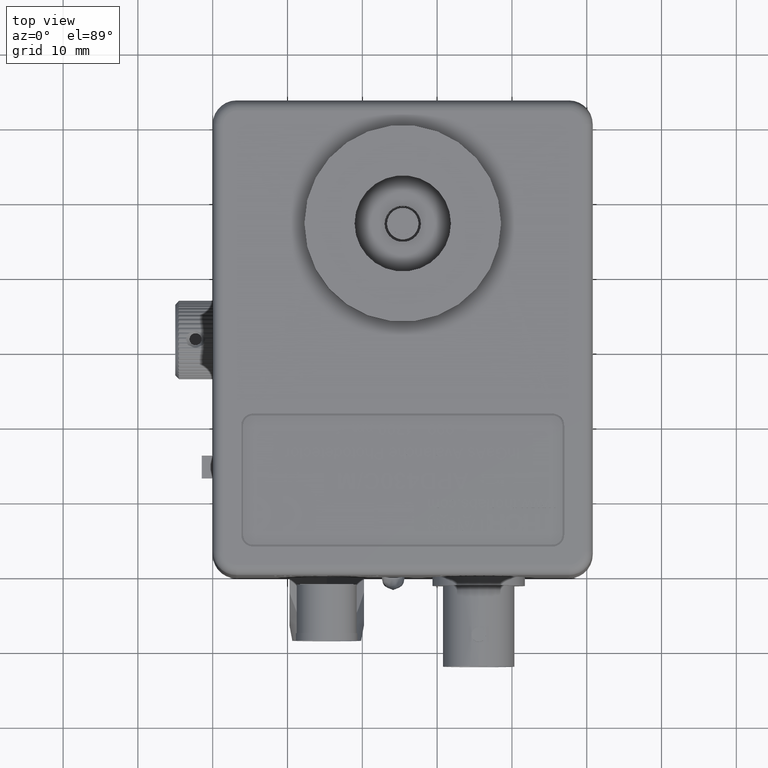
[diagram: clean part render]
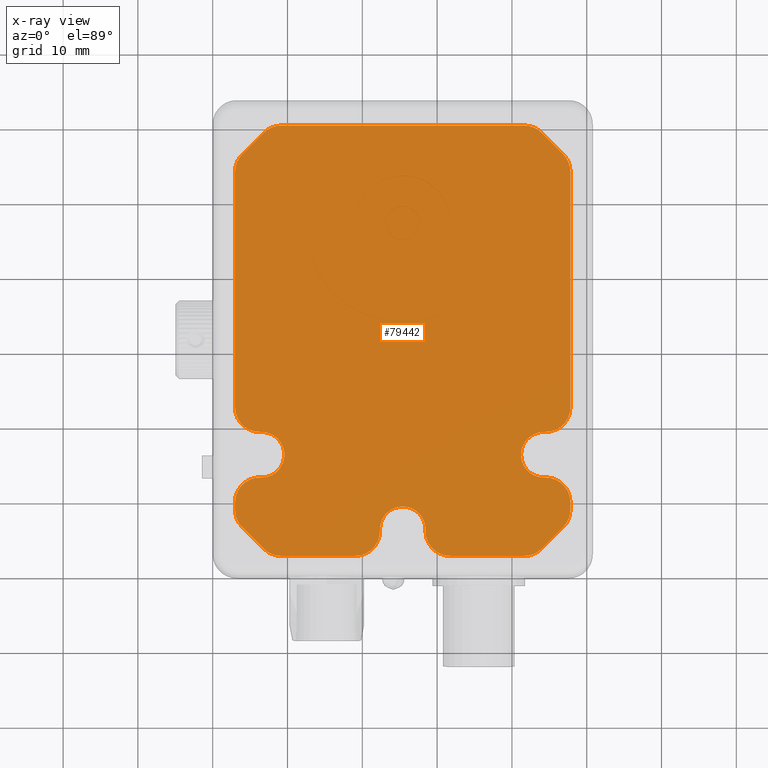
[diagram: x-ray — body ghosted, one internal face saturated and labeled with its STEP entity id]
A machine part, top view, then the same camera in x-ray: the body is ghosted and one INTERNAL B-rep face — a face not visible from any outside direction — is saturated and labeled: STEP entity #79442.
In plain terms, the highlighted planar face has unit normal (0, 0, 1).
Its self-contained STEP definition (entity closure, byte-faithful):
#1457 = VERTEX_POINT ( 'NONE', #101985 ) ;
#2104 = CIRCLE ( 'NONE', #29386, 3.301999999999999600 ) ;
#2356 = ORIENTED_EDGE ( 'NONE', *, *, #75447, .T. ) ;
#3214 = ORIENTED_EDGE ( 'NONE', *, *, #129466, .T. ) ;
#4104 = ORIENTED_EDGE ( 'NONE', *, *, #100851, .T. ) ;
#4576 = LINE ( 'NONE', #95674, #31450 ) ;
#4833 = VERTEX_POINT ( 'NONE', #110928 ) ;
#5561 = CARTESIAN_POINT ( 'NONE',  ( 59.56299999999999500, 0.0000000000000000000, -40.69479510314467100 ) ) ;
#5574 = AXIS2_PLACEMENT_3D ( 'NONE', #18356, #88547, #28462 ) ;
#5588 = DIRECTION ( 'NONE',  ( 0.0000000000000000000, -1.000000000000000000, 0.0000000000000000000 ) ) ;
#5718 = CARTESIAN_POINT ( 'NONE',  ( 0.0000000000000000000, 0.0000000000000000000, -48.89500000000000300 ) ) ;
#7037 = EDGE_CURVE ( 'NONE', #111616, #85062, #98745, .T. ) ;
#8275 = LINE ( 'NONE', #45297, #32011 ) ;
#8498 = CARTESIAN_POINT ( 'NONE',  ( 55.72966169462260700, 0.0000000000000000000, -45.89586659147799000 ) ) ;
#8965 = EDGE_CURVE ( 'NONE', #64667, #63595, #115257, .T. ) ;
#8990 = EDGE_CURVE ( 'NONE', #126611, #42978, #129379, .T. ) ;
#9004 = CARTESIAN_POINT ( 'NONE',  ( 5.333999999999999600, 0.0000000000000000000, -40.69479510314467100 ) ) ;
#9340 = ORIENTED_EDGE ( 'NONE', *, *, #115637, .T. ) ;
#10239 = ORIENTED_EDGE ( 'NONE', *, *, #99113, .T. ) ;
#10387 = VERTEX_POINT ( 'NONE', #8498 ) ;
#10498 = CIRCLE ( 'NONE', #27655, 3.047999999999997800 ) ;
#10687 = VERTEX_POINT ( 'NONE', #46121 ) ;
#11470 = DIRECTION ( 'NONE',  ( 0.0000000000000000000, -1.000000000000000000, 0.0000000000000000000 ) ) ;
#12614 = ORIENTED_EDGE ( 'NONE', *, *, #16394, .T. ) ;
#12824 = DIRECTION ( 'NONE',  ( -0.0000000000000000000, 1.000000000000000000, -0.0000000000000000000 ) ) ;
#13448 = ORIENTED_EDGE ( 'NONE', *, *, #8965, .T. ) ;
#14200 = ORIENTED_EDGE ( 'NONE', *, *, #101457, .T. ) ;
#14536 = CIRCLE ( 'NONE', #34430, 3.301999999999999600 ) ;
#15619 = VERTEX_POINT ( 'NONE', #44373 ) ;
#15940 = DIRECTION ( 'NONE',  ( 0.0000000000000000000, -0.0000000000000000000, -1.000000000000000000 ) ) ;
#16394 = EDGE_CURVE ( 'NONE', #40527, #111616, #36118, .T. ) ;
#16503 = ORIENTED_EDGE ( 'NONE', *, *, #33548, .T. ) ;
#17598 = DIRECTION ( 'NONE',  ( 0.0000000000000000000, 0.0000000000000000000, 1.000000000000000000 ) ) ;
#18012 = CARTESIAN_POINT ( 'NONE',  ( 52.38241796637277000, 0.0000000000000000000, -43.56099999999999300 ) ) ;
#18089 = DIRECTION ( 'NONE',  ( -0.7071067811865489100, -0.0000000000000000000, 0.7071067811865462400 ) ) ;
#18356 = CARTESIAN_POINT ( 'NONE',  ( 52.38241796637274900, 0.0000000000000000000, -5.333999999999999600 ) ) ;
#18389 = DIRECTION ( 'NONE',  ( 0.0000000000000000000, -1.000000000000000000, 0.0000000000000000000 ) ) ;
#18587 = DIRECTION ( 'NONE',  ( 0.0000000000000000000, 0.0000000000000000000, 1.000000000000000000 ) ) ;
#19223 = DIRECTION ( 'NONE',  ( 0.0000000000000000000, 0.0000000000000000000, -1.000000000000000000 ) ) ;
#19301 = CARTESIAN_POINT ( 'NONE',  ( 2.999133408522020300, 0.0000000000000000000, -43.02966169462266100 ) ) ;
#19681 = CARTESIAN_POINT ( 'NONE',  ( 56.26099999999999600, 0.0000000000000000000, -18.10258203362724000 ) ) ;
#19710 = DIRECTION ( 'NONE',  ( 0.0000000000000000000, -1.000000000000000000, 0.0000000000000000000 ) ) ;
#20547 = CIRCLE ( 'NONE', #64222, 3.301999999999999600 ) ;
#21100 = CARTESIAN_POINT ( 'NONE',  ( 8.200204896855332500, 0.0000000000000000000, -46.86300000000000700 ) ) ;
#21285 = ORIENTED_EDGE ( 'NONE', *, *, #100664, .T. ) ;
#21478 = DIRECTION ( 'NONE',  ( 0.0000000000000000000, -1.000000000000000000, 0.0000000000000000000 ) ) ;
#21561 = LINE ( 'NONE', #57670, #125259 ) ;
#22064 = DIRECTION ( 'NONE',  ( 0.0000000000000000000, -1.000000000000000000, 0.0000000000000000000 ) ) ;
#22220 = AXIS2_PLACEMENT_3D ( 'NONE', #90554, #30410, #100690 ) ;
#23134 = VERTEX_POINT ( 'NONE', #24493 ) ;
#23326 = ORIENTED_EDGE ( 'NONE', *, *, #100878, .T. ) ;
#23865 = VERTEX_POINT ( 'NONE', #69966 ) ;
#24227 = ORIENTED_EDGE ( 'NONE', *, *, #117547, .T. ) ;
#24493 = CARTESIAN_POINT ( 'NONE',  ( 59.56299999999999500, 0.0000000000000000000, -18.10258203362724000 ) ) ;
#24699 = VERTEX_POINT ( 'NONE', #124554 ) ;
#25391 = DIRECTION ( 'NONE',  ( 0.7071067811865510100, 0.0000000000000000000, 0.7071067811865441300 ) ) ;
#25785 = CARTESIAN_POINT ( 'NONE',  ( 56.12892000000000100, 0.0000000000000000000, -21.40193937614108000 ) ) ;
#25904 = AXIS2_PLACEMENT_3D ( 'NONE', #73038, #12824, #83157 ) ;
#26157 = ORIENTED_EDGE ( 'NONE', *, *, #26811, .T. ) ;
#26811 = EDGE_CURVE ( 'NONE', #24699, #90949, #56234, .T. ) ;
#26979 = LINE ( 'NONE', #81173, #80436 ) ;
#27564 = AXIS2_PLACEMENT_3D ( 'NONE', #39918, #39630, #120397 ) ;
#27636 = AXIS2_PLACEMENT_3D ( 'NONE', #92666, #32505, #102754 ) ;
#27655 = AXIS2_PLACEMENT_3D ( 'NONE', #87978, #27882, #98134 ) ;
#27882 = DIRECTION ( 'NONE',  ( -0.0000000000000000000, 1.000000000000000000, -0.0000000000000000000 ) ) ;
#28107 = DIRECTION ( 'NONE',  ( 0.0000000000000000000, 0.0000000000000000000, -1.000000000000000000 ) ) ;
#28462 = DIRECTION ( 'NONE',  ( 0.0000000000000000000, 0.0000000000000000000, -1.000000000000000000 ) ) ;
#29386 = AXIS2_PLACEMENT_3D ( 'NONE', #79895, #19710, #89946 ) ;
#29777 = DIRECTION ( 'NONE',  ( 0.0000000000000000000, 0.0000000000000000000, 1.000000000000000000 ) ) ;
#29825 = CARTESIAN_POINT ( 'NONE',  ( 56.00699999999999100, 0.0000000000000000000, -24.44750000000001200 ) ) ;
#30410 = DIRECTION ( 'NONE',  ( -0.0000000000000000000, 1.000000000000000000, -0.0000000000000000000 ) ) ;
#31081 = DIRECTION ( 'NONE',  ( -1.000000000000000000, 0.0000000000000000000, 1.377097915189823600E-017 ) ) ;
#31450 = VECTOR ( 'NONE', #25391, 1000.000000000000000 ) ;
#31655 = VERTEX_POINT ( 'NONE', #99582 ) ;
#32011 = VECTOR ( 'NONE', #95333, 1000.000000000000000 ) ;
#32505 = DIRECTION ( 'NONE',  ( 0.0000000000000000000, -1.000000000000000000, 0.0000000000000000000 ) ) ;
#32556 = DIRECTION ( 'NONE',  ( -0.0000000000000000000, 1.000000000000000000, -0.0000000000000000000 ) ) ;
#33548 = EDGE_CURVE ( 'NONE', #50970, #23865, #126279, .T. ) ;
#33870 = DIRECTION ( 'NONE',  ( 0.0000000000000000000, 0.0000000000000000000, 1.000000000000000000 ) ) ;
#34221 = ORIENTED_EDGE ( 'NONE', *, *, #57052, .T. ) ;
#34430 = AXIS2_PLACEMENT_3D ( 'NONE', #18012, #88196, #28107 ) ;
#34440 = DIRECTION ( 'NONE',  ( 0.0000000000000000000, -1.000000000000000000, 0.0000000000000000000 ) ) ;
#34498 = ORIENTED_EDGE ( 'NONE', *, *, #96605, .T. ) ;
#34700 = CARTESIAN_POINT ( 'NONE',  ( 56.26099999999999600, 0.0000000000000000000, -18.10258203362724000 ) ) ;
#34946 = DIRECTION ( 'NONE',  ( 1.000000000000000000, 0.0000000000000000000, -1.370812052518887000E-014 ) ) ;
#35064 = EDGE_CURVE ( 'NONE', #10387, #38837, #4576, .T. ) ;
#35844 = EDGE_CURVE ( 'NONE', #100824, #15619, #57839, .T. ) ;
#35977 = FACE_OUTER_BOUND ( 'NONE', #70549, .T. ) ;
#36118 = CIRCLE ( 'NONE', #98695, 3.302000000000006300 ) ;
#36955 = ORIENTED_EDGE ( 'NONE', *, *, #35844, .T. ) ;
#37298 = VERTEX_POINT ( 'NONE', #85585 ) ;
#38837 = VERTEX_POINT ( 'NONE', #126544 ) ;
#38910 = CIRCLE ( 'NONE', #58692, 3.302000000000000000 ) ;
#38978 = AXIS2_PLACEMENT_3D ( 'NONE', #71683, #11470, #81824 ) ;
#39328 = VERTEX_POINT ( 'NONE', #75044 ) ;
#39630 = DIRECTION ( 'NONE',  ( 0.0000000000000000000, -1.000000000000000000, 0.0000000000000000000 ) ) ;
#39918 = CARTESIAN_POINT ( 'NONE',  ( 53.39479510314463800, 0.0000000000000000000, -5.333999999999999600 ) ) ;
#39942 = DIRECTION ( 'NONE',  ( 0.0000000000000000000, 0.0000000000000000000, -1.000000000000000000 ) ) ;
#40261 = EDGE_CURVE ( 'NONE', #39328, #57405, #10498, .T. ) ;
#40319 = DIRECTION ( 'NONE',  ( -0.0000000000000000000, 1.000000000000000000, -0.0000000000000000000 ) ) ;
#40527 = VERTEX_POINT ( 'NONE', #42743 ) ;
#41632 = EDGE_CURVE ( 'NONE', #52941, #31655, #52799, .T. ) ;
#42243 = VERTEX_POINT ( 'NONE', #5561 ) ;
#42336 = DIRECTION ( 'NONE',  ( 0.0000000000000000000, -1.000000000000000000, 0.0000000000000000000 ) ) ;
#42743 = CARTESIAN_POINT ( 'NONE',  ( 2.031999999999999600, 0.0000000000000000000, -40.69479510314467100 ) ) ;
#42978 = VERTEX_POINT ( 'NONE', #87597 ) ;
#43554 = EDGE_CURVE ( 'NONE', #68312, #24699, #20547, .T. ) ;
#44373 = CARTESIAN_POINT ( 'NONE',  ( 42.99193937614106900, 0.0000000000000000000, -43.42892000000000500 ) ) ;
#45297 = CARTESIAN_POINT ( 'NONE',  ( 52.38241796637274900, 0.0000000000000000000, -2.032000000000000000 ) ) ;
#46121 = CARTESIAN_POINT ( 'NONE',  ( 8.200204896855376900, 0.0000000000000000000, -2.032000000000000000 ) ) ;
#46806 = EDGE_CURVE ( 'NONE', #69886, #51062, #14536, .T. ) ;
#47237 = ORIENTED_EDGE ( 'NONE', *, *, #35064, .T. ) ;
#48303 = CARTESIAN_POINT ( 'NONE',  ( 39.69258203362722500, 0.0000000000000000000, -43.56099999999999300 ) ) ;
#48684 = CIRCLE ( 'NONE', #50164, 3.301999999999999600 ) ;
#48961 = CIRCLE ( 'NONE', #27636, 3.301999999999999600 ) ;
#49616 = VECTOR ( 'NONE', #91034, 1000.000000000000100 ) ;
#50164 = AXIS2_PLACEMENT_3D ( 'NONE', #19681, #89912, #29777 ) ;
#50824 = LINE ( 'NONE', #127789, #101070 ) ;
#50970 = VERTEX_POINT ( 'NONE', #120101 ) ;
#51062 = VERTEX_POINT ( 'NONE', #92861 ) ;
#51590 = CIRCLE ( 'NONE', #130239, 3.301999999999999600 ) ;
#51951 = VERTEX_POINT ( 'NONE', #86886 ) ;
#52032 = CIRCLE ( 'NONE', #68674, 3.048000000000002300 ) ;
#52058 = EDGE_CURVE ( 'NONE', #1457, #102082, #38910, .T. ) ;
#52060 = CARTESIAN_POINT ( 'NONE',  ( 49.08306062385892700, 0.0000000000000000000, -43.42892000000000500 ) ) ;
#52633 = AXIS2_PLACEMENT_3D ( 'NONE', #82269, #22064, #92369 ) ;
#52799 = LINE ( 'NONE', #80996, #49616 ) ;
#52941 = VERTEX_POINT ( 'NONE', #86381 ) ;
#53382 = ORIENTED_EDGE ( 'NONE', *, *, #72952, .T. ) ;
#53663 = VECTOR ( 'NONE', #81301, 1000.000000000000000 ) ;
#54119 = CIRCLE ( 'NONE', #38978, 3.301999999999998700 ) ;
#56234 = CIRCLE ( 'NONE', #114276, 3.048000000000002300 ) ;
#56409 = VECTOR ( 'NONE', #18587, 1000.000000000000000 ) ;
#57052 = EDGE_CURVE ( 'NONE', #80639, #126611, #52032, .T. ) ;
#57277 = DIRECTION ( 'NONE',  ( 0.0000000000000000000, 0.0000000000000000000, -1.000000000000000000 ) ) ;
#57405 = VERTEX_POINT ( 'NONE', #59022 ) ;
#57670 = CARTESIAN_POINT ( 'NONE',  ( 55.72966169462261400, 0.0000000000000000000, -2.999133408522012700 ) ) ;
#57839 = CIRCLE ( 'NONE', #64995, 3.301999999999999600 ) ;
#58117 = CARTESIAN_POINT ( 'NONE',  ( 56.00699999999999100, 0.0000000000000000000, -21.39950000000001000 ) ) ;
#58446 = DIRECTION ( 'NONE',  ( 0.0000000000000000000, 0.0000000000000000000, -1.000000000000000000 ) ) ;
#58692 = AXIS2_PLACEMENT_3D ( 'NONE', #78567, #18389, #88579 ) ;
#59022 = CARTESIAN_POINT ( 'NONE',  ( 42.99193937614106900, 0.0000000000000000000, -5.466079999999998900 ) ) ;
#61257 = AXIS2_PLACEMENT_3D ( 'NONE', #34700, #34440, #33870 ) ;
#63409 = CARTESIAN_POINT ( 'NONE',  ( 2.032000000000000500, 0.0000000000000000000, -8.200204896855348500 ) ) ;
#63595 = VERTEX_POINT ( 'NONE', #77380 ) ;
#63980 = ORIENTED_EDGE ( 'NONE', *, *, #43554, .T. ) ;
#64222 = AXIS2_PLACEMENT_3D ( 'NONE', #81681, #21478, #91745 ) ;
#64667 = VERTEX_POINT ( 'NONE', #87087 ) ;
#64995 = AXIS2_PLACEMENT_3D ( 'NONE', #48303, #118519, #58446 ) ;
#65872 = CARTESIAN_POINT ( 'NONE',  ( 53.39479510314463800, 0.0000000000000000000, -43.56100000000000000 ) ) ;
#67948 = CIRCLE ( 'NONE', #25904, 3.048000000000002300 ) ;
#68312 = VERTEX_POINT ( 'NONE', #107686 ) ;
#68674 = AXIS2_PLACEMENT_3D ( 'NONE', #92707, #32556, #102801 ) ;
#69886 = VERTEX_POINT ( 'NONE', #52060 ) ;
#69966 = CARTESIAN_POINT ( 'NONE',  ( 49.08306062385891300, 0.0000000000000000000, -5.466079999999998900 ) ) ;
#70549 = EDGE_LOOP ( 'NONE', ( #89169, #3214, #97030, #9340, #74918, #12614, #86277, #14200, #110858, #36955, #71312, #128961, #21285, #129904, #47237, #2356, #53382, #63980, #26157, #23326, #34221, #121693, #24227, #112055, #92722, #10239, #13448, #34498, #16503, #120695, #101545, #4104 ) ) ;
#71312 = ORIENTED_EDGE ( 'NONE', *, *, #116594, .T. ) ;
#71683 = CARTESIAN_POINT ( 'NONE',  ( 8.200204896855376900, 0.0000000000000000000, -5.333999999999999600 ) ) ;
#71971 = EDGE_CURVE ( 'NONE', #51951, #100824, #80304, .T. ) ;
#72012 = VECTOR ( 'NONE', #93902, 1000.000000000000100 ) ;
#72952 = EDGE_CURVE ( 'NONE', #42243, #68312, #83080, .T. ) ;
#73038 = CARTESIAN_POINT ( 'NONE',  ( 56.00699999999999100, 0.0000000000000000000, -24.44750000000001200 ) ) ;
#74697 = EDGE_CURVE ( 'NONE', #23134, #1457, #50824, .T. ) ;
#74918 = ORIENTED_EDGE ( 'NONE', *, *, #79528, .T. ) ;
#75044 = CARTESIAN_POINT ( 'NONE',  ( 46.03749999999999400, 0.0000000000000000000, -8.635999999999997500 ) ) ;
#75447 = EDGE_CURVE ( 'NONE', #38837, #42243, #113270, .T. ) ;
#75979 = DIRECTION ( 'NONE',  ( 0.0000000000000000000, 0.0000000000000000000, -1.000000000000000000 ) ) ;
#76108 = DIRECTION ( 'NONE',  ( 0.0000000000000000000, -1.000000000000000000, 0.0000000000000000000 ) ) ;
#76376 = CARTESIAN_POINT ( 'NONE',  ( 58.59586659147797100, 0.0000000000000000000, -5.865338305377361100 ) ) ;
#76840 = VERTEX_POINT ( 'NONE', #63409 ) ;
#77380 = CARTESIAN_POINT ( 'NONE',  ( 53.39479510314463800, 0.0000000000000000000, -2.032000000000000000 ) ) ;
#78567 = CARTESIAN_POINT ( 'NONE',  ( 56.26099999999999600, 0.0000000000000000000, -8.200204896855346700 ) ) ;
#79407 = DIRECTION ( 'NONE',  ( 0.0000000000000000000, -1.000000000000000000, 0.0000000000000000000 ) ) ;
#79442 = ADVANCED_FACE ( 'NONE', ( #35977 ), #95884, .T. ) ;
#79528 = EDGE_CURVE ( 'NONE', #76840, #40527, #100373, .T. ) ;
#79895 = CARTESIAN_POINT ( 'NONE',  ( 5.334000000000000500, 0.0000000000000000000, -8.200204896855346700 ) ) ;
#80304 = LINE ( 'NONE', #21100, #53663 ) ;
#80436 = VECTOR ( 'NONE', #31081, 1000.000000000000000 ) ;
#80639 = VERTEX_POINT ( 'NONE', #58117 ) ;
#80870 = AXIS2_PLACEMENT_3D ( 'NONE', #5718, #76108, #15940 ) ;
#80996 = CARTESIAN_POINT ( 'NONE',  ( 2.999133408522031400, 0.0000000000000000000, -5.865338305377356700 ) ) ;
#81173 = CARTESIAN_POINT ( 'NONE',  ( 39.69258203362722500, 0.0000000000000000000, -2.032000000000000500 ) ) ;
#81301 = DIRECTION ( 'NONE',  ( 1.000000000000000000, 0.0000000000000000000, 2.203356664303715100E-016 ) ) ;
#81681 = CARTESIAN_POINT ( 'NONE',  ( 56.26099999999999600, 0.0000000000000000000, -30.79241796637278100 ) ) ;
#81824 = DIRECTION ( 'NONE',  ( 0.0000000000000000000, 0.0000000000000000000, 1.000000000000000000 ) ) ;
#82269 = CARTESIAN_POINT ( 'NONE',  ( 56.26099999999999600, 0.0000000000000000000, -40.69479510314467100 ) ) ;
#83080 = LINE ( 'NONE', #128774, #56409 ) ;
#83157 = DIRECTION ( 'NONE',  ( 0.0000000000000000000, 0.0000000000000000000, -1.000000000000000000 ) ) ;
#83725 = CARTESIAN_POINT ( 'NONE',  ( 52.38241796637277000, 0.0000000000000000000, -46.86299999999999200 ) ) ;
#84718 = CARTESIAN_POINT ( 'NONE',  ( 5.865338305377360200, 0.0000000000000000000, -45.89586659147798300 ) ) ;
#85062 = VERTEX_POINT ( 'NONE', #84718 ) ;
#85585 = CARTESIAN_POINT ( 'NONE',  ( 53.39479510314463800, 0.0000000000000000000, -46.86300000000000700 ) ) ;
#86277 = ORIENTED_EDGE ( 'NONE', *, *, #7037, .T. ) ;
#86381 = CARTESIAN_POINT ( 'NONE',  ( 5.865338305377410000, 0.0000000000000000000, -2.999133408522011800 ) ) ;
#86886 = CARTESIAN_POINT ( 'NONE',  ( 8.200204896855332500, 0.0000000000000000000, -46.86300000000000000 ) ) ;
#87062 = CARTESIAN_POINT ( 'NONE',  ( 2.031999999999999600, 0.0000000000000000000, -8.200204896855350300 ) ) ;
#87087 = CARTESIAN_POINT ( 'NONE',  ( 55.72966169462261400, 0.0000000000000000000, -2.999133408522012700 ) ) ;
#87597 = CARTESIAN_POINT ( 'NONE',  ( 56.26099999999999600, 0.0000000000000000000, -21.40458203362723900 ) ) ;
#87978 = CARTESIAN_POINT ( 'NONE',  ( 46.03749999999999400, 0.0000000000000000000, -5.588000000000000100 ) ) ;
#88196 = DIRECTION ( 'NONE',  ( 0.0000000000000000000, -1.000000000000000000, 0.0000000000000000000 ) ) ;
#88547 = DIRECTION ( 'NONE',  ( 0.0000000000000000000, -1.000000000000000000, 0.0000000000000000000 ) ) ;
#88579 = DIRECTION ( 'NONE',  ( 0.0000000000000000000, 0.0000000000000000000, 1.000000000000000000 ) ) ;
#89169 = ORIENTED_EDGE ( 'NONE', *, *, #125263, .T. ) ;
#89912 = DIRECTION ( 'NONE',  ( 0.0000000000000000000, -1.000000000000000000, 0.0000000000000000000 ) ) ;
#89946 = DIRECTION ( 'NONE',  ( 0.0000000000000000000, 0.0000000000000000000, -1.000000000000000000 ) ) ;
#90239 = CIRCLE ( 'NONE', #120656, 3.047999999999997800 ) ;
#90554 = CARTESIAN_POINT ( 'NONE',  ( 46.03749999999999400, 0.0000000000000000000, -43.30699999999999500 ) ) ;
#90949 = VERTEX_POINT ( 'NONE', #119126 ) ;
#91034 = DIRECTION ( 'NONE',  ( -0.7071067811865513500, -0.0000000000000000000, -0.7071067811865435800 ) ) ;
#91415 = EDGE_CURVE ( 'NONE', #37298, #10387, #51590, .T. ) ;
#91492 = VECTOR ( 'NONE', #34946, 1000.000000000000000 ) ;
#91745 = DIRECTION ( 'NONE',  ( 0.0000000000000000000, 0.0000000000000000000, -1.000000000000000000 ) ) ;
#92369 = DIRECTION ( 'NONE',  ( 0.0000000000000000000, 0.0000000000000000000, 1.000000000000000000 ) ) ;
#92666 = CARTESIAN_POINT ( 'NONE',  ( 8.200204896855332500, 0.0000000000000000000, -43.56100000000000000 ) ) ;
#92707 = CARTESIAN_POINT ( 'NONE',  ( 56.00699999999999100, 0.0000000000000000000, -24.44750000000001200 ) ) ;
#92722 = ORIENTED_EDGE ( 'NONE', *, *, #52058, .T. ) ;
#92861 = CARTESIAN_POINT ( 'NONE',  ( 52.38241796637277000, 0.0000000000000000000, -46.86299999999999200 ) ) ;
#93902 = DIRECTION ( 'NONE',  ( 0.7071067811865499000, 0.0000000000000000000, -0.7071067811865451300 ) ) ;
#94497 = CARTESIAN_POINT ( 'NONE',  ( 2.999133408522017200, 0.0000000000000000000, -43.02966169462266100 ) ) ;
#94922 = EDGE_CURVE ( 'NONE', #23865, #39328, #90239, .T. ) ;
#95333 = DIRECTION ( 'NONE',  ( -1.000000000000000000, -0.0000000000000000000, 1.713515065648573400E-015 ) ) ;
#95674 = CARTESIAN_POINT ( 'NONE',  ( 55.72966169462260700, 0.0000000000000000000, -45.89586659147799000 ) ) ;
#95884 = PLANE ( 'NONE',  #80870 ) ;
#96605 = EDGE_CURVE ( 'NONE', #63595, #50970, #8275, .T. ) ;
#97030 = ORIENTED_EDGE ( 'NONE', *, *, #41632, .T. ) ;
#97194 = VECTOR ( 'NONE', #57277, 1000.000000000000000 ) ;
#98134 = DIRECTION ( 'NONE',  ( 0.0000000000000000000, 0.0000000000000000000, -1.000000000000000000 ) ) ;
#98695 = AXIS2_PLACEMENT_3D ( 'NONE', #9004, #79407, #19223 ) ;
#98745 = LINE ( 'NONE', #94497, #72012 ) ;
#99113 = EDGE_CURVE ( 'NONE', #102082, #64667, #21561, .T. ) ;
#99582 = CARTESIAN_POINT ( 'NONE',  ( 2.999133408522033100, 0.0000000000000000000, -5.865338305377346000 ) ) ;
#100098 = DIRECTION ( 'NONE',  ( -0.0000000000000000000, 1.000000000000000000, -0.0000000000000000000 ) ) ;
#100373 = LINE ( 'NONE', #87062, #97194 ) ;
#100482 = CARTESIAN_POINT ( 'NONE',  ( 46.03749999999999400, 0.0000000000000000000, -5.588000000000000100 ) ) ;
#100664 = EDGE_CURVE ( 'NONE', #51062, #37298, #118192, .T. ) ;
#100690 = DIRECTION ( 'NONE',  ( 0.0000000000000000000, 0.0000000000000000000, -1.000000000000000000 ) ) ;
#100824 = VERTEX_POINT ( 'NONE', #118310 ) ;
#100851 = EDGE_CURVE ( 'NONE', #57405, #4833, #104157, .T. ) ;
#100878 = EDGE_CURVE ( 'NONE', #90949, #80639, #67948, .T. ) ;
#101070 = VECTOR ( 'NONE', #17598, 1000.000000000000000 ) ;
#101457 = EDGE_CURVE ( 'NONE', #85062, #51951, #48961, .T. ) ;
#101545 = ORIENTED_EDGE ( 'NONE', *, *, #40261, .T. ) ;
#101985 = CARTESIAN_POINT ( 'NONE',  ( 59.56299999999999500, 0.0000000000000000000, -8.200204896855346700 ) ) ;
#102082 = VERTEX_POINT ( 'NONE', #76376 ) ;
#102475 = CARTESIAN_POINT ( 'NONE',  ( 39.69258203362722500, 0.0000000000000000000, -5.334000000000000500 ) ) ;
#102754 = DIRECTION ( 'NONE',  ( 0.0000000000000000000, 0.0000000000000000000, -1.000000000000000000 ) ) ;
#102801 = DIRECTION ( 'NONE',  ( 0.0000000000000000000, 0.0000000000000000000, -1.000000000000000000 ) ) ;
#104157 = CIRCLE ( 'NONE', #109221, 3.302000000000001800 ) ;
#107686 = CARTESIAN_POINT ( 'NONE',  ( 59.56299999999999500, 0.0000000000000000000, -30.79241796637278100 ) ) ;
#109221 = AXIS2_PLACEMENT_3D ( 'NONE', #102475, #42336, #112569 ) ;
#110589 = DIRECTION ( 'NONE',  ( 0.0000000000000000000, 0.0000000000000000000, -1.000000000000000000 ) ) ;
#110858 = ORIENTED_EDGE ( 'NONE', *, *, #71971, .T. ) ;
#110928 = CARTESIAN_POINT ( 'NONE',  ( 39.69258203362722500, 0.0000000000000000000, -2.031999999999998300 ) ) ;
#111616 = VERTEX_POINT ( 'NONE', #19301 ) ;
#112055 = ORIENTED_EDGE ( 'NONE', *, *, #74697, .T. ) ;
#112569 = DIRECTION ( 'NONE',  ( 0.0000000000000000000, 0.0000000000000000000, 1.000000000000000000 ) ) ;
#113270 = CIRCLE ( 'NONE', #52633, 3.301999999999999600 ) ;
#114276 = AXIS2_PLACEMENT_3D ( 'NONE', #29825, #100098, #39942 ) ;
#115257 = CIRCLE ( 'NONE', #27564, 3.301999999999999600 ) ;
#115637 = EDGE_CURVE ( 'NONE', #31655, #76840, #2104, .T. ) ;
#116594 = EDGE_CURVE ( 'NONE', #15619, #69886, #129011, .T. ) ;
#117547 = EDGE_CURVE ( 'NONE', #42978, #23134, #48684, .T. ) ;
#118192 = LINE ( 'NONE', #83725, #91492 ) ;
#118310 = CARTESIAN_POINT ( 'NONE',  ( 39.69258203362722500, 0.0000000000000000000, -46.86300000000000000 ) ) ;
#118519 = DIRECTION ( 'NONE',  ( 0.0000000000000000000, -1.000000000000000000, 0.0000000000000000000 ) ) ;
#119126 = CARTESIAN_POINT ( 'NONE',  ( 56.00699999999999100, 0.0000000000000000000, -27.49550000000001400 ) ) ;
#120101 = CARTESIAN_POINT ( 'NONE',  ( 52.38241796637274900, 0.0000000000000000000, -2.032000000000000000 ) ) ;
#120397 = DIRECTION ( 'NONE',  ( 0.0000000000000000000, 0.0000000000000000000, 1.000000000000000000 ) ) ;
#120656 = AXIS2_PLACEMENT_3D ( 'NONE', #100482, #40319, #110589 ) ;
#120695 = ORIENTED_EDGE ( 'NONE', *, *, #94922, .T. ) ;
#121693 = ORIENTED_EDGE ( 'NONE', *, *, #8990, .T. ) ;
#124554 = CARTESIAN_POINT ( 'NONE',  ( 56.12892000000000100, 0.0000000000000000000, -27.49306062385894500 ) ) ;
#125259 = VECTOR ( 'NONE', #18089, 1000.000000000000000 ) ;
#125263 = EDGE_CURVE ( 'NONE', #4833, #10687, #26979, .T. ) ;
#126279 = CIRCLE ( 'NONE', #5574, 3.301999999999988100 ) ;
#126544 = CARTESIAN_POINT ( 'NONE',  ( 58.59586659147795700, 0.0000000000000000000, -43.02966169462266800 ) ) ;
#126611 = VERTEX_POINT ( 'NONE', #25785 ) ;
#127789 = CARTESIAN_POINT ( 'NONE',  ( 59.56299999999999500, 0.0000000000000000000, -18.10258203362724000 ) ) ;
#128774 = CARTESIAN_POINT ( 'NONE',  ( 59.56299999999999500, 0.0000000000000000000, -40.69479510314467100 ) ) ;
#128961 = ORIENTED_EDGE ( 'NONE', *, *, #46806, .T. ) ;
#129011 = CIRCLE ( 'NONE', #22220, 3.048000000000002300 ) ;
#129379 = CIRCLE ( 'NONE', #61257, 3.301999999999999600 ) ;
#129466 = EDGE_CURVE ( 'NONE', #10687, #52941, #54119, .T. ) ;
#129904 = ORIENTED_EDGE ( 'NONE', *, *, #91415, .T. ) ;
#130239 = AXIS2_PLACEMENT_3D ( 'NONE', #65872, #5588, #75979 ) ;